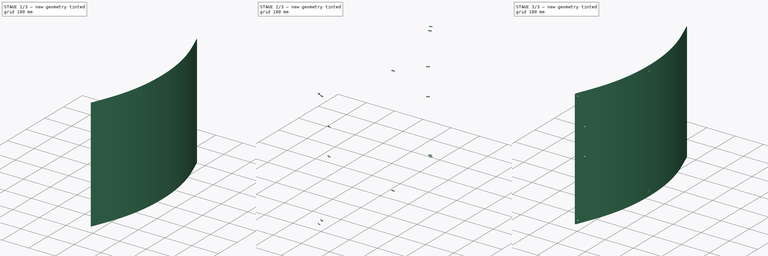
[diagram: build sequence overview — one tinted view per stage of 3, left to right]
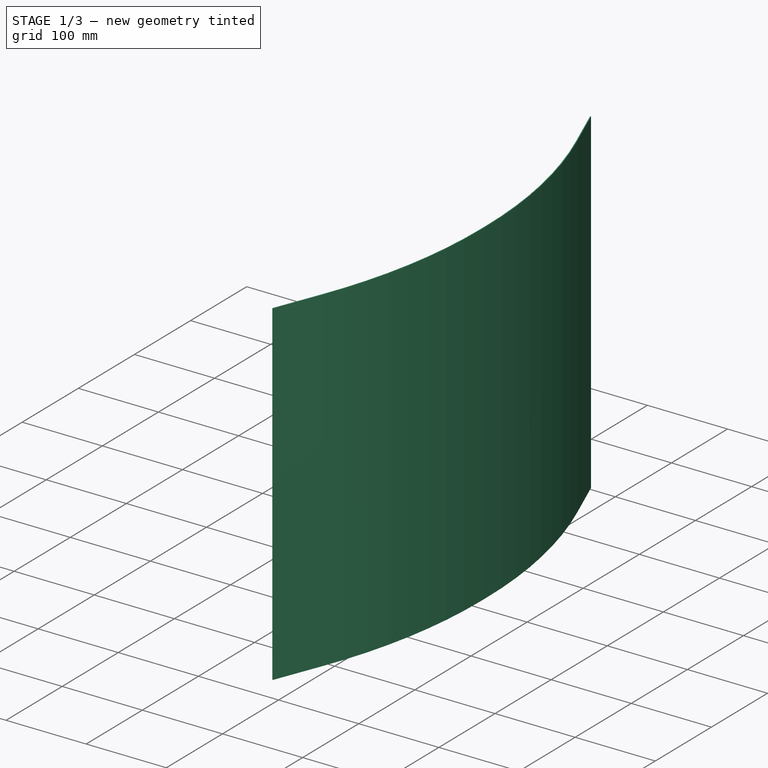
[diagram: stage 1 of 3 — iso view after this stage's code; geometry added in this stage tinted green]
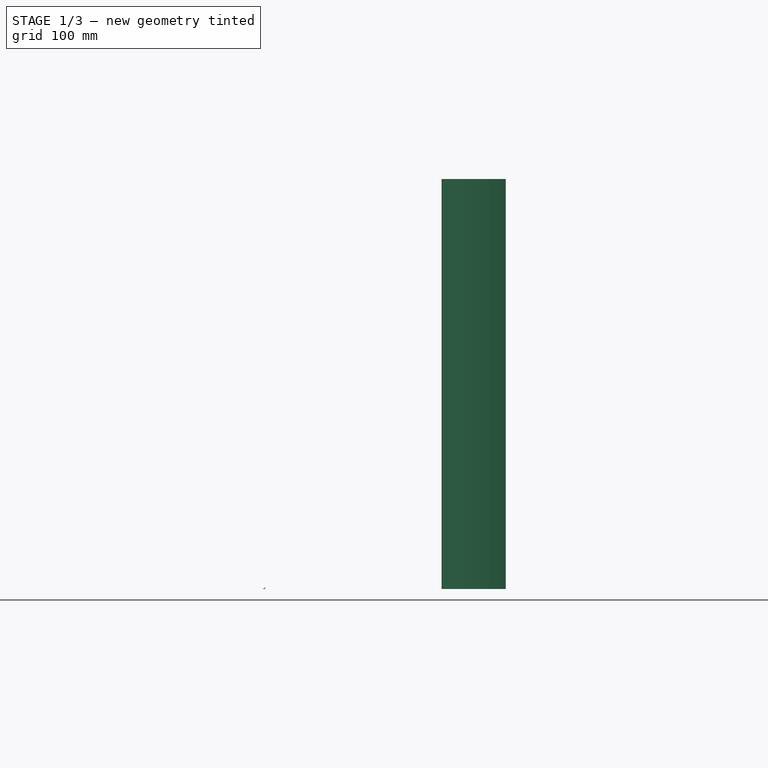
[diagram: stage 1 of 3 — front view after this stage's code; geometry added in this stage tinted green]
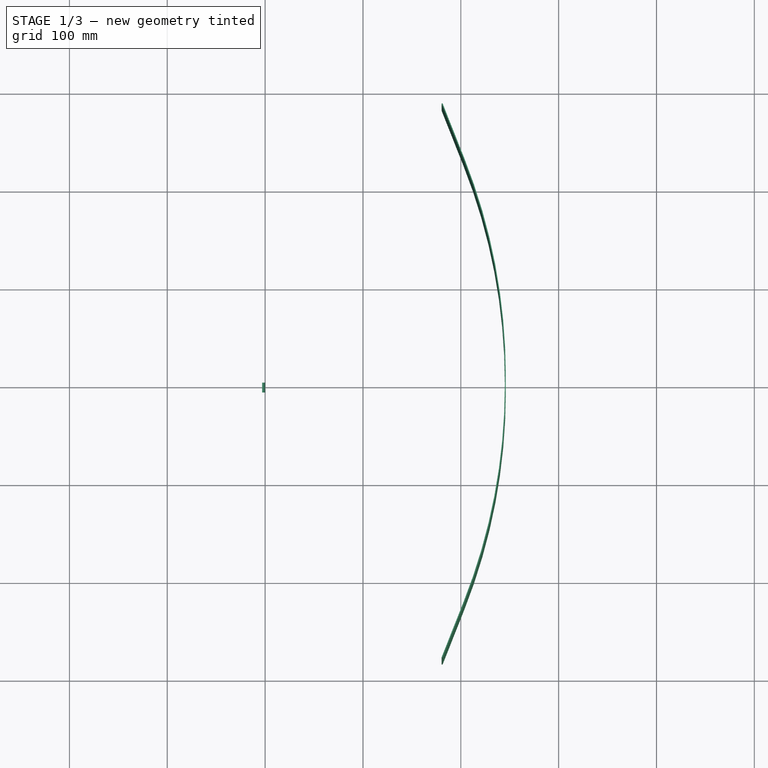
[diagram: stage 1 of 3 — top view after this stage's code; geometry added in this stage tinted green]
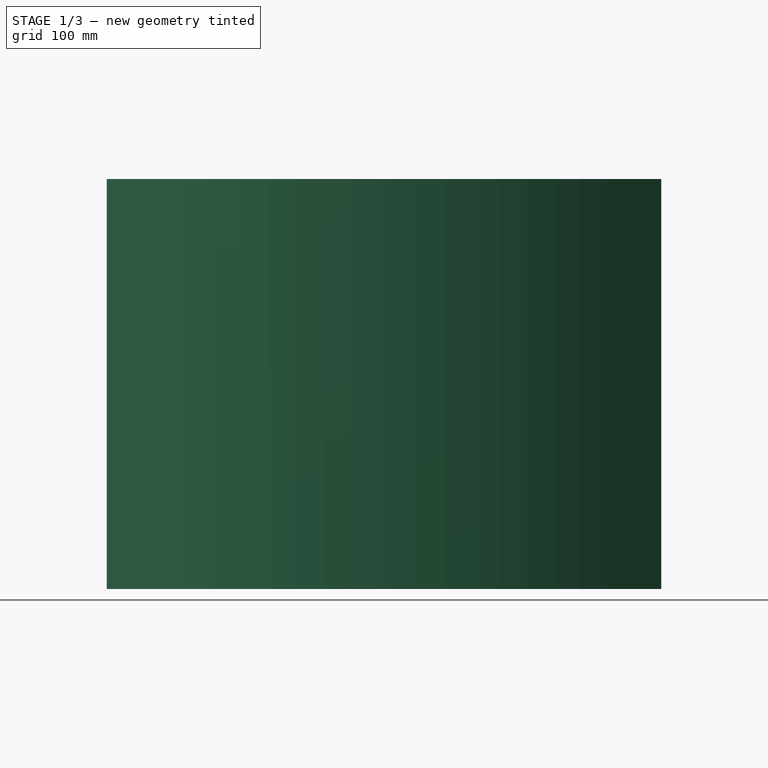
[diagram: stage 1 of 3 — right view after this stage's code; geometry added in this stage tinted green]
FCSTD DOCUMENT  (FreeCAD 1.1R38827 (Git))
Label: composit_stand3_tech_sector_plexiglass_model
License: All rights reserved
LicenseURL: http://en.wikipedia.org/wiki/All_rights_reserved
objects: Part::FeaturePython×20, App::Link×7, PartDesign::SubShapeBinder×2, Sketcher::SketchObject×2, PartDesign::Body×2, PartDesign::FeaturePython×1, PartDesign::CoordinateSystem×1, Part::Cylinder×1, Part::Extrusion×1, Part::MultiFuse×1, PartDesign::Boolean×1
note: 36 computed .brp shape members not serialized (recipe doc carries the construction recipe); baked Part::Feature solids carry a one-line shape summary decoded from their .brp
EXTERNAL_REF file=composit_stand3_tech_sector_plexiglass_main.FCStd obj=Sketch
EXTERNAL_REF file=composit_stand3_tech_sector_plexiglass_main.FCStd obj=Placment
EXTERNAL_REF file=composit_stand3_tech_sector_pillar_main.FCStd obj=Join001
EXTERNAL_REF file=composit_stand3_tech_sector_pillar_main.FCStd obj=Placment
EXTERNAL_REF file=composit_stand3_tech_sector_pillar_main.FCStd obj=LinearArray
EXTERNAL_REF file=composit_stand3_tech_sector_pillar_main.FCStd obj=Placment001
EXTERNAL_REF file=composit_stand3_tech_sector_plexiglass_main.FCStd obj=Placment001
EXTERNAL_REF file=../corner_small_14.5mm.FCStd obj=Binder001

FEATURE [PartDesign::Body] Body001  label="Body"
  AllowCompound = false
  Origin = -> Origin001
FEATURE [Part::FeaturePython] Placment  # WARN: FeaturePython — macro-defined, semantics opaque (R4)
  AttacherType = Attacher::AttachEngine3D
  ExposePlacement = true
  MarkerShape = 1
  MarkerSize = 50
  NumElements = 1
  Placement = pos=(0,0,3) rot=(0,0,1;0rad)
  Type = lattice2AttachablePlacement.AttachablePlacement
  isLattice = 1
FEATURE [Part::FeaturePython] Populate002  label="Populate edge_placement with Placment"  # WARN: FeaturePython — macro-defined, semantics opaque (R4)
  Copying = 0
  ExposePlacement = false
  MarkerShape = 1
  MarkerSize = 50
  NumElements = 1
  Object = -> Placment
  OutputCompounding = 0
  PlacementsTo = -> Link
  Referencing = 0
  Type = lattice2PopulateCopies.LatticePopulateCopies
  isLattice = 1
FEATURE [Part::FeaturePython] Populate  label="Populate edge_placement with plexiglass_fix_holes"  # WARN: FeaturePython — macro-defined, semantics opaque (R4)
  Copying = 0
  ExposePlacement = false
  MarkerShape = 1
  MarkerSize = 0
  NumElements = 2
  Object = -> Link001
  OutputCompounding = 0
  PlacementsFrom = -> Link002
  PlacementsTo = -> Populate002
  Referencing = 3
  Type = lattice2PopulateCopies.LatticePopulateCopies
  isLattice = 1
FEATURE [Part::FeaturePython] Mirror  label="Mirror of Populate edge_placement with plexiglass_fix_holes"  # WARN: FeaturePython — macro-defined, semantics opaque (R4)
  ExposePlacement = false
  FlipX = false
  FlipY = true
  FlipZ = false
  MarkerShape = 1
  MarkerSize = 0
  NumElements = 2
  Object = -> Populate
  ObjectTraversal = 0
  Type = lattice2Mirror.LatticeMirror
  isLattice = 1
FEATURE [Sketcher::SketchObject] Sketch001
  ArcFitTolerance = 0
  FullyConstrained = true
  MakeInternals = false
  Placement = pos=(0,0,0) rot=(0,0.707107,0.707107;3.14159rad)
  sketch-geometry (3):
    g0: ArcOfCircle CenterX=3 CenterY=3 CenterZ=0 NormalX=0 NormalY=0 NormalZ=1 AngleXU=0 Radius=3 StartAngle=3.14159 EndAngle=4.71239
    g1: LineSegment StartX=3 StartY=0 StartZ=0 EndX=0 EndY=0 EndZ=0
    g2: LineSegment StartX=0 StartY=0 StartZ=0 EndX=0 EndY=3 EndZ=0
  constraints (8):
    c: PointOnObject(g0,g-1)
    c: PointOnObject(g0,g-2)
    c: Coincident(g1,g2)
    c: Vertical(g2)
    c: Tangent(g0,g1) = 1.5708
    c: Tangent(g2,g0) = 1.5708
    c: Horizontal(g1)
    c: Radius(g0) = 3
FEATURE [Part::Extrusion] Extrude
  Base = -> Sketch001
  Dir = (0,1,-2e-16)
  DirMode = 2
  FaceMakerClass = Part::FaceMakerBullseye
  FaceMakerMode = 3
  LengthFwd = 10
  LengthRev = 0
  Solid = true
  Symmetric = true
FEATURE [PartDesign::Body] Body  label="plexiglass"
  AllowCompound = false
  Group = -> [Binder001,BaseBend,Local_CS,Boolean]
  Origin = -> Origin
  Tip = -> Boolean

RESOLVED EXTERNAL PARTS (link-assembly join: the EXTERNAL_REF files above that resolve inside this repo's crawl, each included once):
---- part ../corner_small_14.5mm.FCStd = doc fcstd_ada1082cf59f ----
FCSTD DOCUMENT  (FreeCAD 1.1R38827 (Git))
Label: corner_small_14.5mm
License: All rights reserved
LicenseURL: http://en.wikipedia.org/wiki/All_rights_reserved
objects: Sketcher::SketchObject×3, PartDesign::SubShapeBinder×3, PartDesign::Hole×2, PartDesign::FeaturePython×1, PartDesign::CoordinateSystem×1, PartDesign::Body×1
note: 19 computed .brp shape members not serialized (recipe doc carries the construction recipe); baked Part::Feature solids carry a one-line shape summary decoded from their .brp

FEATURE [Sketcher::SketchObject] Sketch
  ArcFitTolerance = 0
  AttachmentSupport = -> [YZ_Plane]
  FullyConstrained = true
  MakeInternals = false
  MapMode = 5
  Placement = pos=(0,0,0) rot=(0.57735,0.57735,0.57735;2.0944rad)
  sketch-geometry (2):
    g0: LineSegment StartX=20 StartY=0 StartZ=0 EndX=3.1122e-12 EndY=4.6395e-12 EndZ=0
    g1: LineSegment StartX=3.1122e-12 StartY=4.6395e-12 StartZ=0 EndX=0 EndY=20 EndZ=0
  constraints (6):
    c: PointOnObject(g0,g-1)
    c: Coincident(g0,g-1)
    c: Coincident(g0,g1)
    c: PointOnObject(g1,g-2)
    c: Equal(g0,g1)
    c: DistanceX(g0,g0) = 20
FEATURE [PartDesign::FeaturePython] BaseBend  # WARN: FeaturePython — macro-defined, semantics opaque (R4)
  BendSide = 0
  BendSketch = -> Sketch
  MidPlane = true
  Reverse = false
  Suppressed = false
  length = 16
  radius = 1.5
  thickness = 1.5
FEATURE [Sketcher::SketchObject] Sketch001  label="bot_hole"
  ArcFitTolerance = 0
  FullyConstrained = true
  MakeInternals = false
  sketch-geometry (1):
    g0: Circle CenterX=0 CenterY=12 CenterZ=0 NormalX=0 NormalY=0 NormalZ=1 AngleXU=0 Radius=2.25
  constraints (3):
    c: PointOnObject(g0,g-2)
    c: DistanceY(g0) = 12
    c: Diameter(g0) = 4.5
FEATURE [PartDesign::SubShapeBinder] Binder
  BindCopyOnChange = 0
  BindMode = 0
  ClaimChildren = false
  Context = -> Body [Binder.]
  Fuse = false
  MakeFace = true
  OffsetFill = false
  OffsetIntersection = false
  OffsetJoinType = 0
  OffsetOpenResult = false
  PartialLoad = false
  Relative = true
  Support = -> [Sketch001]
  _Version = 2
FEATURE [PartDesign::Hole] Hole
  BaseFeature = -> BaseBend
  CustomThreadClearance = 0
  Depth = 25
  DepthType = 0
  Diameter = 4.5
  DrillForDepth = false
  DrillPoint = 1
  DrillPointAngle = 118
  HoleCutCountersinkAngle = 90
  HoleCutCustomValues = false
  HoleCutDepth = 0
  HoleCutDiameter = 6.1
  HoleCutType = 0
  ModelThread = false
  Profile = -> Binder
  Reversed = true
  Suppressed = false
  Tapered = false
  TaperedAngle = 90
  ThreadClass = 0
  ThreadDepth = 25
  ThreadDepthType = 0
  ThreadDirection = 0
  ThreadFit = 0
  ThreadSize = 0
  ThreadType = 0
  Threaded = false
  UseCustomThreadClearance = false
FEATURE [Sketcher::SketchObject] Sketch002
  ArcFitTolerance = 0
  AttachmentSupport = -> [XZ_Plane]
  FullyConstrained = true
  MakeInternals = false
  MapMode = 5
  Placement = pos=(0,0,0) rot=(1,0,0;1.5708rad)
  sketch-geometry (1):
    g0: Circle CenterX=0 CenterY=14.5 CenterZ=0 NormalX=0 NormalY=0 NormalZ=1 AngleXU=0 Radius=2.25
  constraints (3):
    c: PointOnObject(g0,g-2)
    c: DistanceY(g0) = 14.5
    c: Diameter(g0) = 4.5
FEATURE [PartDesign::SubShapeBinder] Binder001  label="vert_hole"
  BindCopyOnChange = 0
  BindMode = 0
  ClaimChildren = false
  Context = -> Body [Binder001.]
  Fuse = false
  MakeFace = true
  OffsetFill = false
  OffsetIntersection = false
  OffsetJoinType = 0
  OffsetOpenResult = false
  PartialLoad = false
  Relative = true
  Support = -> [Sketch002]
  _Version = 2
FEATURE [PartDesign::CoordinateSystem] Local_CS
  AttacherType = Attacher::AttachEngine3D
  AttachmentSupport = -> [XY_Plane]
  MapMode = 5
FEATURE [PartDesign::SubShapeBinder] Binder002
  BindCopyOnChange = 0
  BindMode = 0
  ClaimChildren = false
  Context = -> Body [Binder002.]
  Fuse = false
  MakeFace = true
  OffsetFill = false
  OffsetIntersection = false
  OffsetJoinType = 0
  OffsetOpenResult = false
  PartialLoad = false
  Relative = true
  Support = -> [Binder001]
  _Version = 2
FEATURE [PartDesign::Hole] Hole001
  BaseFeature = -> Hole
  CustomThreadClearance = 0
  Depth = 25
  DepthType = 0
  Diameter = 4.5
  DrillForDepth = false
  DrillPoint = 1
  DrillPointAngle = 118
  HoleCutCountersinkAngle = 90
  HoleCutCustomValues = false
  HoleCutDepth = 0
  HoleCutDiameter = 6.1
  HoleCutType = 0
  ModelThread = false
  Profile = -> Binder002
  Reversed = true
  Suppressed = false
  Tapered = false
  TaperedAngle = 90
  ThreadClass = 0
  ThreadDepth = 25
  ThreadDepthType = 0
  ThreadDirection = 0
  ThreadFit = 0
  ThreadSize = 0
  ThreadType = 0
  Threaded = false
  UseCustomThreadClearance = false
FEATURE [PartDesign::Body] Body
  AllowCompound = false
  Group = -> [Sketch,BaseBend,Binder,Hole,Local_CS,Binder002,Hole001]
  Origin = -> Origin
  Tip = -> Hole001
---- part composit_stand3_tech_sector_plexiglass_main.FCStd = doc fcstd_4438cd22ccd8 ----
FCSTD DOCUMENT  (FreeCAD 1.1R38827 (Git))
Label: composit_stand3_tech_sector_plexiglass_main
License: All rights reserved
LicenseURL: http://en.wikipedia.org/wiki/All_rights_reserved
objects: Part::FeaturePython×2, Sketcher::SketchObject×1, Part::Feature×1
note: 5 computed .brp shape members not serialized (recipe doc carries the construction recipe); baked Part::Feature solids carry a one-line shape summary decoded from their .brp
EXTERNAL_REF file=composit_stand3_tech_sector_pillar_main.FCStd obj=Sketch

FEATURE [Sketcher::SketchObject] Sketch  label="main_sketch"
  ArcFitTolerance = 0
  FullyConstrained = true
  MakeInternals = false
  expr: .Constraints.angle = 60 deg + <<composit_stand3_tech_sector_pillar_main>>#<<Sketch>>.Constraints.angle
  expr: Constraints[5] = <<composit_stand3_tech_sector_pillar_main>>#<<Sketch>>.Constraints.front
  sketch-geometry (3):
    g0: LineSegment StartX=202.67 StartY=226.752 StartZ=0 EndX=180.364 EndY=283.047 EndZ=0
    g1: ArcOfCircle CenterX=-357 CenterY=5 CenterZ=0 NormalX=0 NormalY=0 NormalZ=1 AngleXU=0 Radius=602 StartAngle=0 EndAngle=0.377243
    g2: LineSegment StartX=245 StartY=5 StartZ=0 EndX=245 EndY=0 EndZ=0
  constraints (9):
    c: Angle(g0) = 1.94804  'angle'
    c: Tangent(g0,g1) = -1.5708
    c: Vertical(g2)
    c: Tangent(g2,g1) = 1.5708
    c: DistanceY(g2,g2) = 5
    c: Distance(g0) = 60.5533
    c: PointOnObject(g2,g-1)
    c: Radius(g1) = 602  'r'
    c: DistanceX(g2) = 245  'offset'
FEATURE [Part::Feature] Body160  label="tech_sector_plexiglass_material_0.30ansi001"
  Placement = pos=(0,0,0) rot=(0,0,-1;0.523599rad)
  shape: bbox 73.31 x 566.4 x 419 mm, 26 faces (baked)
FEATURE [Part::FeaturePython] Placment  label="edge_placement"  # WARN: FeaturePython — macro-defined, semantics opaque (R4)
  AttacherType = Attacher::AttachEngine3D
  AttachmentOffset = pos=(0,0,0) rot=(-0.57735,0.57735,0.57735;2.0944rad)
  AttachmentSupport = -> [Sketch]
  ExposePlacement = true
  MapMode = 7
  MarkerShape = 1
  MarkerSize = 50
  NumElements = 1
  Placement = pos=(180.364,283.047,0) rot=(0,0,1;1.94804rad)
  Type = lattice2AttachablePlacement.AttachablePlacement
  isLattice = 1
FEATURE [Part::FeaturePython] Placment001  label="fix_corner_placement"  # WARN: FeaturePython — macro-defined, semantics opaque (R4)
  AttacherType = Attacher::AttachEngine3D
  ExposePlacement = true
  MarkerShape = 1
  MarkerSize = 200
  NumElements = 1
  Placement = pos=(245,0,3) rot=(0,0,1;1.5708rad)
  Type = lattice2AttachablePlacement.AttachablePlacement
  isLattice = 1
  expr: .Placement.Base.x = <<main_sketch>>.Constraints.offset
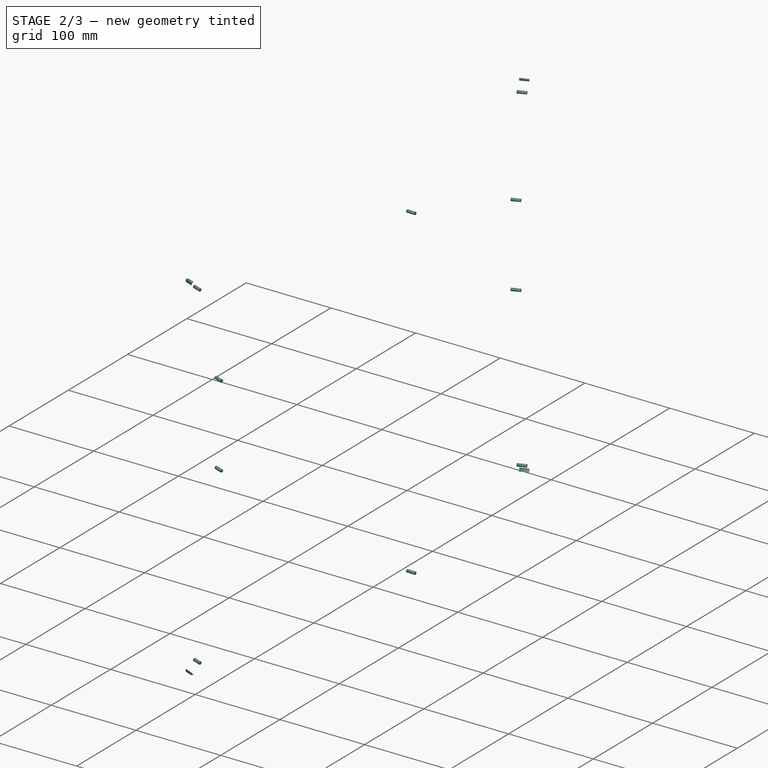
[diagram: stage 2 of 3 — iso view after this stage's code; geometry added in this stage tinted green]
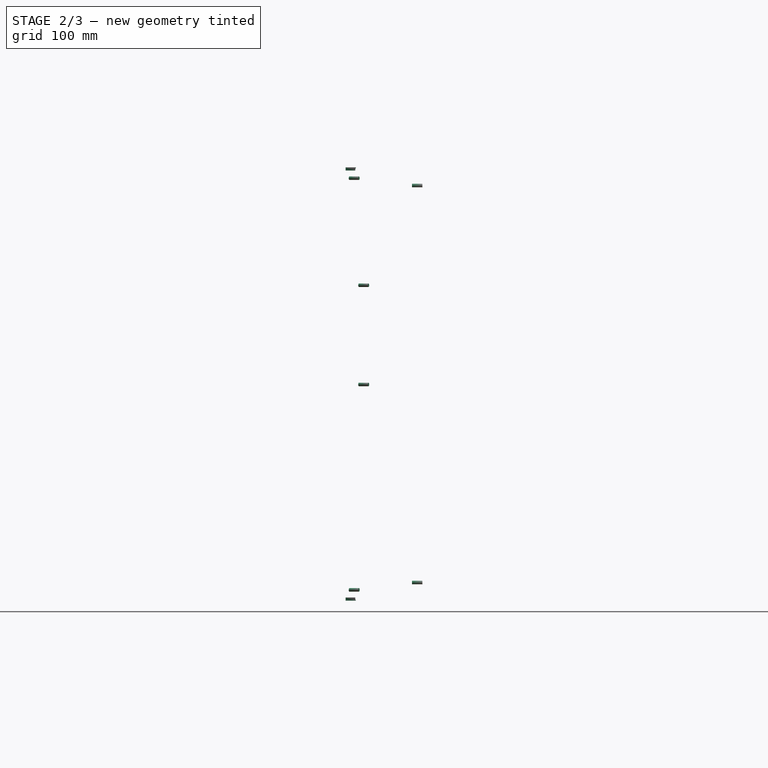
[diagram: stage 2 of 3 — front view after this stage's code; geometry added in this stage tinted green]
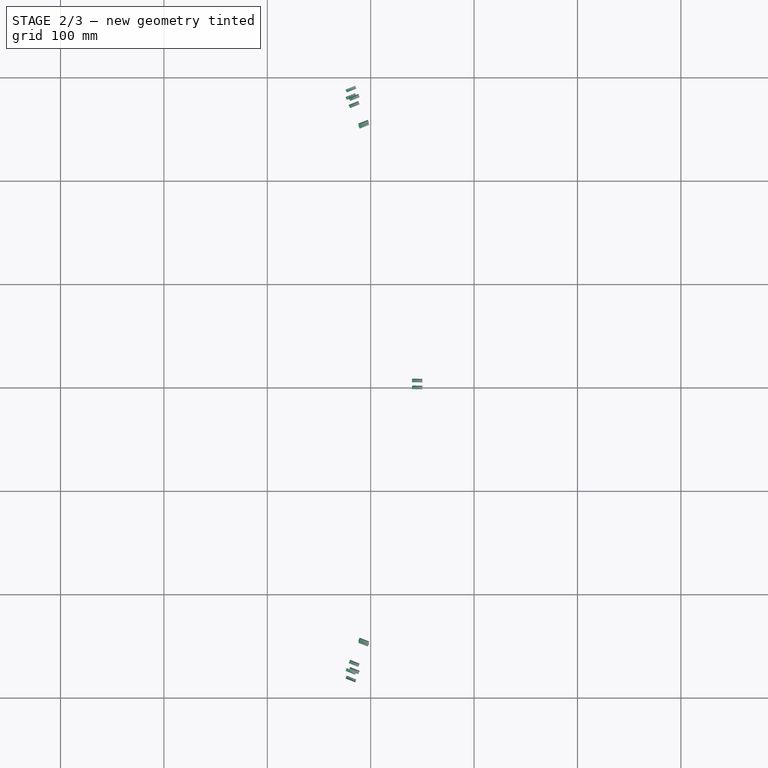
[diagram: stage 2 of 3 — top view after this stage's code; geometry added in this stage tinted green]
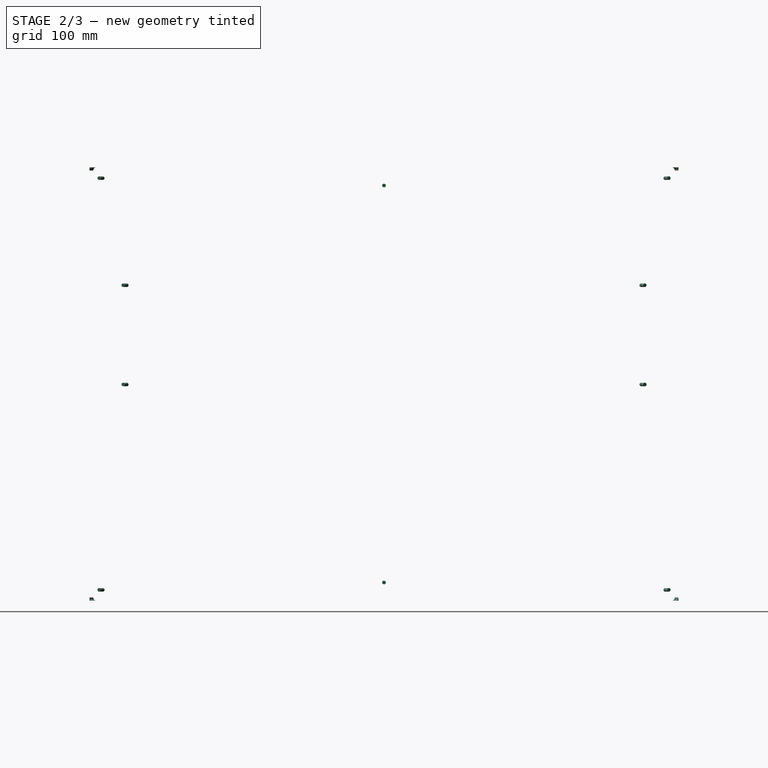
[diagram: stage 2 of 3 — right view after this stage's code; geometry added in this stage tinted green]
FEATURE [PartDesign::SubShapeBinder] Binder
  BindCopyOnChange = 0
  BindMode = 0
  ClaimChildren = false
  Fuse = false
  MakeFace = true
  OffsetFill = false
  OffsetIntersection = false
  OffsetJoinType = 0
  OffsetOpenResult = false
  PartialLoad = false
  Relative = true
  Support = -> [<external composit_stand3_tech_sector_plexiglass_main.FCStd>#Sketch]
  _Version = 2
FEATURE [Sketcher::SketchObject] Sketch
  ArcFitTolerance = 0
  ExternalGeometry = -> [Binder]
  FullyConstrained = false
  MakeInternals = false
  sketch-geometry (4):
    g0: LineSegment StartX=180.364 StartY=283.047 StartZ=0 EndX=245 EndY=119.916 EndZ=0
    g1: LineSegment StartX=245 StartY=119.916 StartZ=0 EndX=245 EndY=-119.916 EndZ=0
    g2: LineSegment StartX=245 StartY=-119.916 StartZ=0 EndX=180.364 EndY=-283.047 EndZ=0
    g3: GeomPoint [constr] X=102.255 Y=14.9858 Z=0
  constraints (7):
    c: Coincident(g1,g2)
    c: Coincident(g0,g1)
    c: Symmetric(g2,g0,g-1)
    c: Symmetric(g0,g1,g-1)
    c: PointOnObject(g-3,g1)
    c: Coincident(g0,g-4)
    c: PointOnObject(g-4,g0)
FEATURE [PartDesign::SubShapeBinder] Binder001
  BindCopyOnChange = 0
  BindMode = 0
  ClaimChildren = false
  Context = -> Body [Binder001.]
  Fuse = false
  MakeFace = true
  OffsetFill = false
  OffsetIntersection = false
  OffsetJoinType = 0
  OffsetOpenResult = false
  PartialLoad = false
  Relative = true
  Support = -> [Sketch]
  _Version = 2
FEATURE [PartDesign::FeaturePython] BaseBend  # WARN: FeaturePython — macro-defined, semantics opaque (R4)
  BendSide = 1
  BendSketch = -> Binder001
  MidPlane = false
  Reverse = false
  Suppressed = false
  length = 419
  radius = 602
  thickness = 1
  expr: radius = composit_stand3_tech_sector_plexiglass_main#<<main_sketch>>.Constraints.r
FEATURE [PartDesign::CoordinateSystem] Local_CS  label="base_LCS"
  AttacherType = Attacher::AttachEngine3D
  AttachmentSupport = -> [XY_Plane]
  MapMode = 5
FEATURE [App::Link] Link  label="edge_placement"
  LinkClaimChild = true
  LinkTransform = true
  LinkedObject = -> <external composit_stand3_tech_sector_plexiglass_main.FCStd>#Placment
FEATURE [App::Link] Link001  label="plexiglass_fix_holes"
  LinkedObject = -> <external composit_stand3_tech_sector_pillar_main.FCStd>#Join001
FEATURE [App::Link] Link002  label="front_support_intersection_placement"
  LinkTransform = true
  LinkedObject = -> <external composit_stand3_tech_sector_pillar_main.FCStd>#Placment
FEATURE [Part::Cylinder] Cylinder  label="hole_3.4mm"
  Angle = 360
  AttacherType = Attacher::AttachEngine3D
  FirstAngle = 0
  Height = 10
  Placement = pos=(0,0,-5) rot=(0,0,1;0rad)
  Radius = 1.7
  SecondAngle = 0
FEATURE [Part::FeaturePython] Mirror001  label="Mirror001 of edge_placement"  # WARN: FeaturePython — macro-defined, semantics opaque (R4)
  ExposePlacement = false
  FlipX = false
  FlipY = false
  FlipZ = true
  MarkerShape = 1
  MarkerSize = 50
  NumElements = 1
  Object = -> Link
  ObjectTraversal = 0
  PivotPlacement = pos=(0,0,209.5) rot=(0,0,1;0rad)
  Type = lattice2Mirror.LatticeMirror
  isLattice = 1
  expr: .PivotPlacement.Base.z = <<BaseBend>>.length / 2
FEATURE [Part::FeaturePython] Join001  # WARN: FeaturePython — macro-defined, semantics opaque (R4)
  ExposePlacement = false
  Interleave = false
  Links = -> [Link,Mirror001]
  MarkerShape = 1
  MarkerSize = 0
  NumElements = 2
  Type = lattice2JoinArrays.JoinArrays
  isLattice = 1
FEATURE [Part::FeaturePython] Mirror002  label="Mirror002 of Join001"  # WARN: FeaturePython — macro-defined, semantics opaque (R4)
  ExposePlacement = false
  FlipX = false
  FlipY = true
  FlipZ = false
  MarkerShape = 1
  MarkerSize = 0
  NumElements = 2
  Object = -> Join001
  ObjectTraversal = 0
  Type = lattice2Mirror.LatticeMirror
  isLattice = 1
FEATURE [Part::FeaturePython] Join002  # WARN: FeaturePython — macro-defined, semantics opaque (R4)
  ExposePlacement = false
  Interleave = false
  Links = -> [Join001,Mirror002]
  MarkerShape = 1
  MarkerSize = 0
  NumElements = 4
  Type = lattice2JoinArrays.JoinArrays
  isLattice = 1
FEATURE [Part::FeaturePython] Populate003  label="Populate Join002 with Extrude"  # WARN: FeaturePython — macro-defined, semantics opaque (R4)
  Copying = 0
  ExposePlacement = false
  MarkerShape = 1
  MarkerSize = 0
  NumElements = 0
  Object = -> Extrude
  OutputCompounding = 1
  PlacementsTo = -> Join002
  Referencing = 0
  Type = lattice2PopulateCopies.LatticePopulateCopies
  isLattice = 0
FEATURE [App::Link] Link003  label="hand_holes_placement"
  LinkTransform = true
  LinkedObject = -> <external composit_stand3_tech_sector_pillar_main.FCStd>#LinearArray
FEATURE [App::Link] Link004  label="hand_placement"
  LinkTransform = true
  LinkedObject = -> <external composit_stand3_tech_sector_pillar_main.FCStd>#Placment001
FEATURE [Part::FeaturePython] Populate004  label="Populate Populate edge_placement with Placment with hand_placement"  # WARN: FeaturePython — macro-defined, semantics opaque (R4)
  Copying = 0
  ExposePlacement = false
  MarkerShape = 1
  MarkerSize = 20
  NumElements = 1
  Object = -> Link004
  OutputCompounding = 0
  PlacementsFrom = -> Link002
  PlacementsTo = -> Populate002
  Referencing = 3
  Type = lattice2PopulateCopies.LatticePopulateCopies
  isLattice = 1
FEATURE [Part::FeaturePython] Mirror003  label="Mirror003 of Populate Populate edge_placement with Placment with hand_placement"  # WARN: FeaturePython — macro-defined, semantics opaque (R4)
  ExposePlacement = false
  FlipX = false
  FlipY = true
  FlipZ = false
  MarkerShape = 1
  MarkerSize = 50
  NumElements = 1
  Object = -> Populate004
  ObjectTraversal = 0
  Type = lattice2Mirror.LatticeMirror
  isLattice = 1
FEATURE [Part::FeaturePython] Join003  # WARN: FeaturePython — macro-defined, semantics opaque (R4)
  ExposePlacement = false
  Interleave = false
  Links = -> [Populate004,Mirror003]
  MarkerShape = 1
  MarkerSize = 0
  NumElements = 2
  Type = lattice2JoinArrays.JoinArrays
  isLattice = 1
FEATURE [Part::FeaturePython] Populate005  label="Populate Join003 with hand_holes_placement"  # WARN: FeaturePython — macro-defined, semantics opaque (R4)
  Copying = 0
  ExposePlacement = false
  MarkerShape = 1
  MarkerSize = 0
  NumElements = 4
  Object = -> Link003
  OutputCompounding = 0
  PlacementsTo = -> Join003
  Referencing = 0
  Type = lattice2PopulateCopies.LatticePopulateCopies
  isLattice = 1
FEATURE [App::Link] Link005  label="fix_corner_placement"
  LinkTransform = true
  LinkedObject = -> <external composit_stand3_tech_sector_plexiglass_main.FCStd>#Placment001
FEATURE [App::Link] Link006  label="vert_hole"
  LinkedObject = -> <external ../corner_small_14.5mm.FCStd>#Binder001
FEATURE [Part::FeaturePython] Downgrade  label="Wires of vert_hole"  # WARN: FeaturePython — macro-defined, semantics opaque (R4)
  Base = -> Link006
  Mode = 7
FEATURE [Part::FeaturePython] ArrayFromShape  label="Array from Wires of vert_hole"  # WARN: FeaturePython — macro-defined, semantics opaque (R4)
  CompoundTraversal = 1
  ExposePlacement = false
  MarkerShape = 1
  MarkerSize = 5
  NumElements = 1
  OrientElementIndex = 0
  OrientMode = 4
  Placement = pos=(0,0,0) rot=(0,0,1;1.55334rad)
  ShapeLink = -> Downgrade
  TranslateElementIndex = 0
  TranslateMode = 3
  Type = lattice2ArrayFromShape.LatticeArrayFromShape
  isLattice = 1
FEATURE [Part::FeaturePython] Populate006  label="Populate fix_corner_placement with Array from Wires of vert_hole"  # WARN: FeaturePython — macro-defined, semantics opaque (R4)
  Copying = 0
  ExposePlacement = false
  MarkerShape = 1
  MarkerSize = 50
  NumElements = 1
  Object = -> ArrayFromShape
  OutputCompounding = 0
  PlacementsTo = -> Link005
  Referencing = 0
  Type = lattice2PopulateCopies.LatticePopulateCopies
  isLattice = 1
FEATURE [Part::FeaturePython] Mirror004  label="Mirror004 of Populate fix_corner_placement with Array from Wires of vert_hole"  # WARN: FeaturePython — macro-defined, semantics opaque (R4)
  ExposePlacement = false
  FlipX = false
  FlipY = false
  FlipZ = true
  MarkerShape = 1
  MarkerSize = 50
  NumElements = 1
  Object = -> Populate006
  ObjectTraversal = 0
  PivotPlacement = pos=(0,0,209.5) rot=(0,0,1;0rad)
  Type = lattice2Mirror.LatticeMirror
  isLattice = 1
  expr: .PivotPlacement.Base.z = <<BaseBend>>.length / 2
FEATURE [Part::FeaturePython] Join004  # WARN: FeaturePython — macro-defined, semantics opaque (R4)
  ExposePlacement = false
  Interleave = false
  Links = -> [Populate006,Mirror004]
  MarkerShape = 1
  MarkerSize = 0
  NumElements = 2
  Type = lattice2JoinArrays.JoinArrays
  isLattice = 1
FEATURE [Part::FeaturePython] Join  # WARN: FeaturePython — macro-defined, semantics opaque (R4)
  ExposePlacement = false
  Interleave = false
  Links = -> [Populate,Mirror,Populate005,Join004]
  MarkerShape = 1
  MarkerSize = 0
  NumElements = 10
  Type = lattice2JoinArrays.JoinArrays
  isLattice = 1
FEATURE [Part::FeaturePython] Populate001  label="Populate Join with hole_3.4mm"  # WARN: FeaturePython — macro-defined, semantics opaque (R4)
  Copying = 0
  ExposePlacement = false
  MarkerShape = 1
  MarkerSize = 0
  NumElements = 0
  Object = -> Cylinder
  OutputCompounding = 1
  PlacementsTo = -> Join
  Referencing = 0
  Type = lattice2PopulateCopies.LatticePopulateCopies
  isLattice = 0
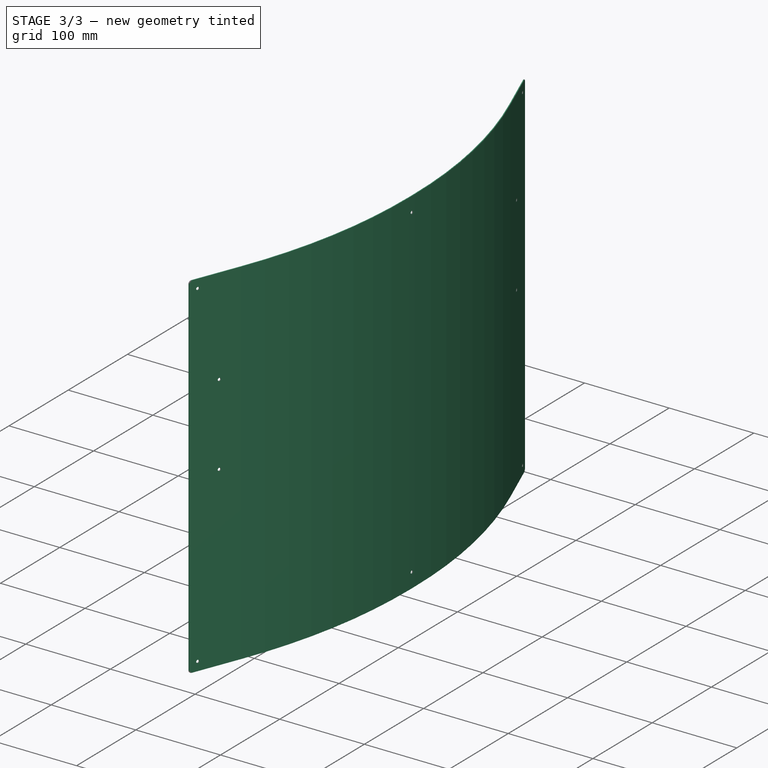
[diagram: stage 3 of 3 — iso view after this stage's code; geometry added in this stage tinted green]
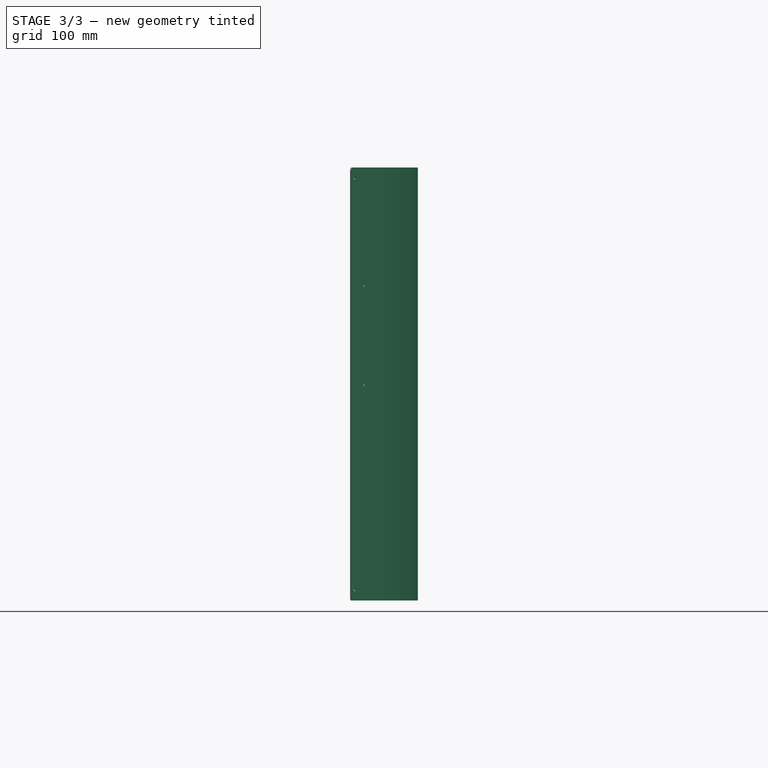
[diagram: stage 3 of 3 — front view after this stage's code; geometry added in this stage tinted green]
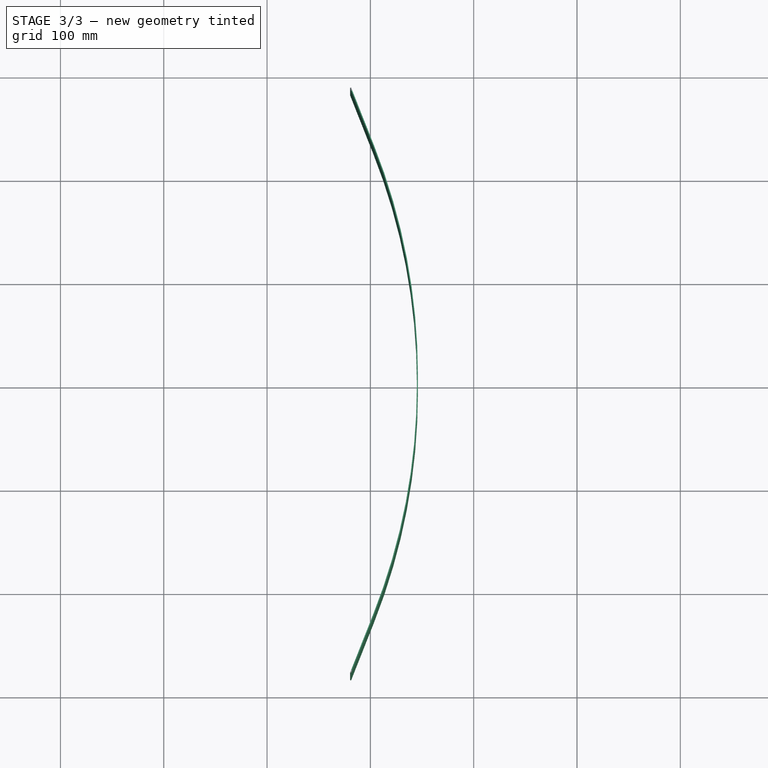
[diagram: stage 3 of 3 — top view after this stage's code; geometry added in this stage tinted green]
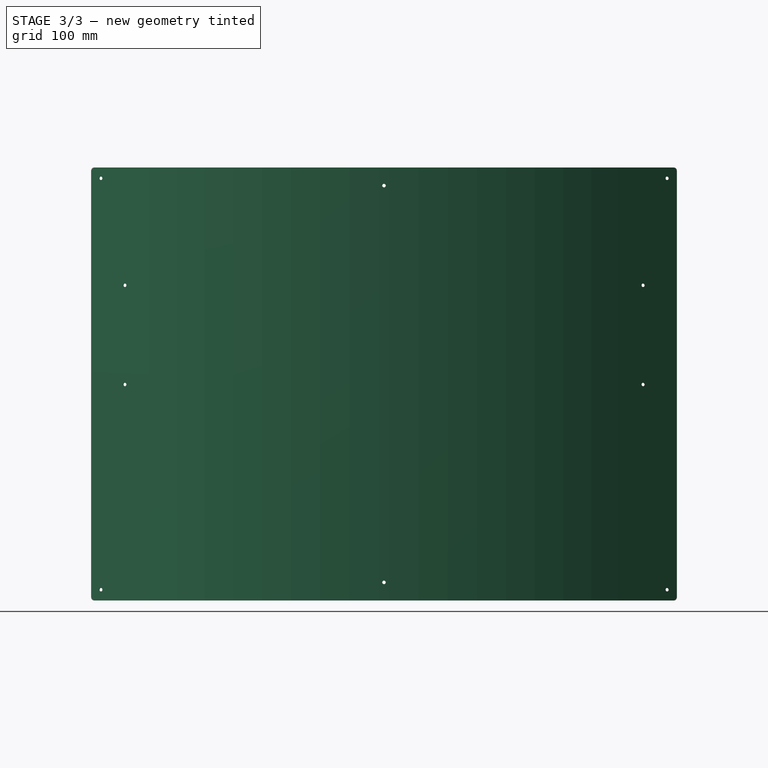
[diagram: stage 3 of 3 — right view after this stage's code; geometry added in this stage tinted green]
FEATURE [Part::MultiFuse] Fusion
  Shapes = -> [Populate001,Populate003]
FEATURE [PartDesign::Boolean] Boolean
  BaseFeature = -> BaseBend
  Group = -> [Fusion]
  Suppressed = false
  Type = 1
  UsePlacement = true
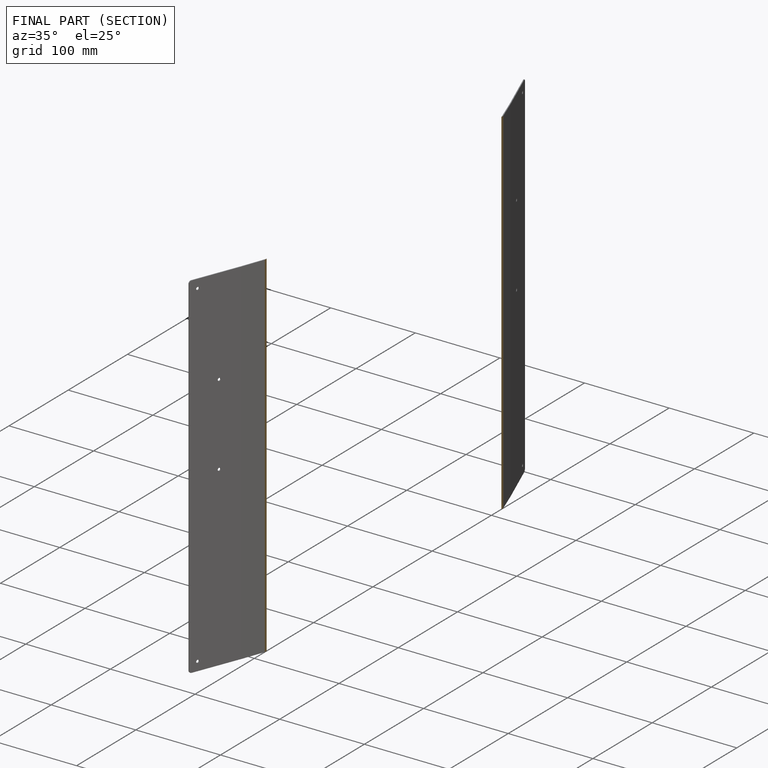
[diagram: finished part — half-section view (interior)]
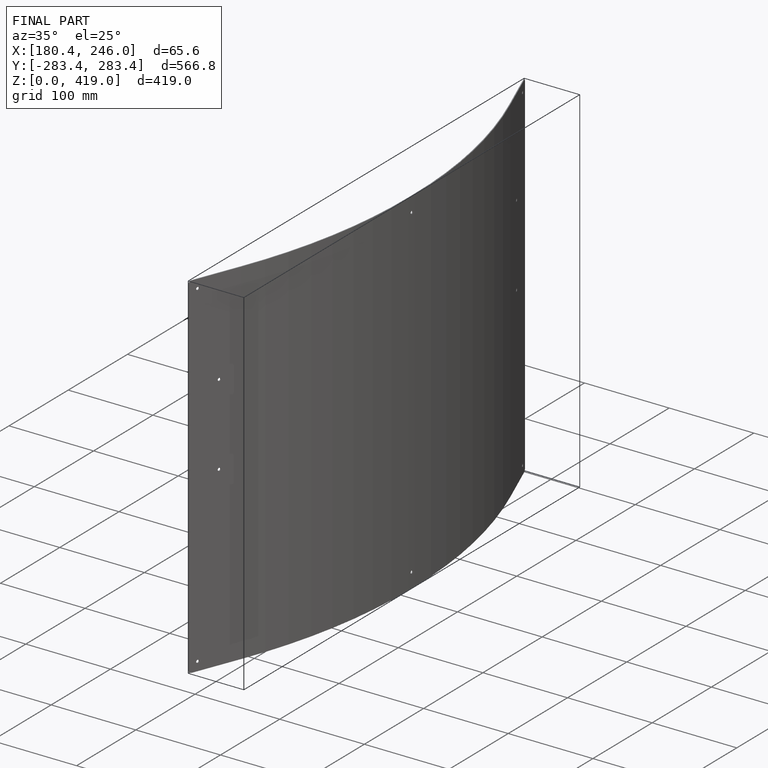
[diagram: finished part — iso view with bounding-box wireframe]
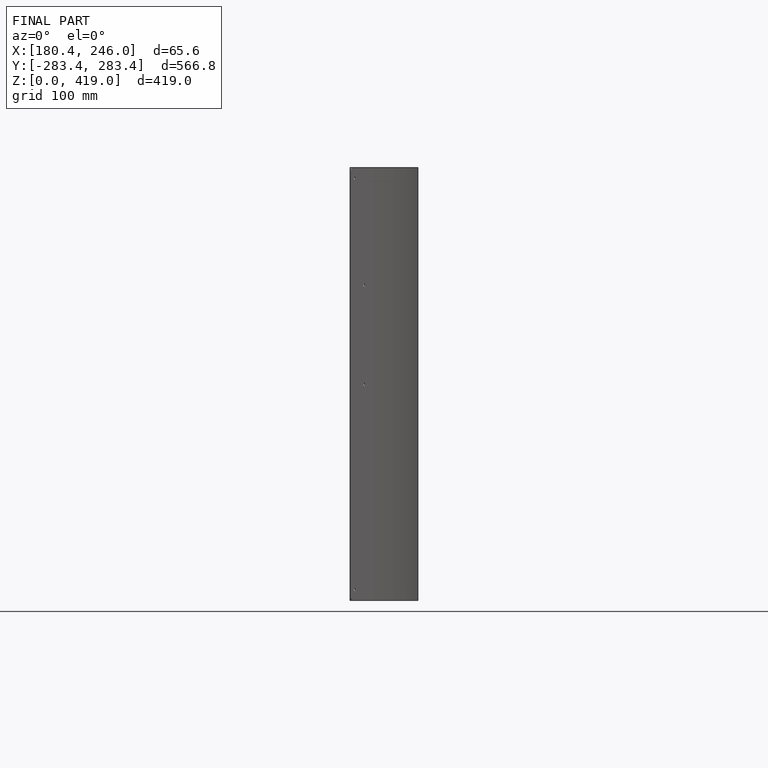
[diagram: finished part — front view with bounding-box wireframe]
